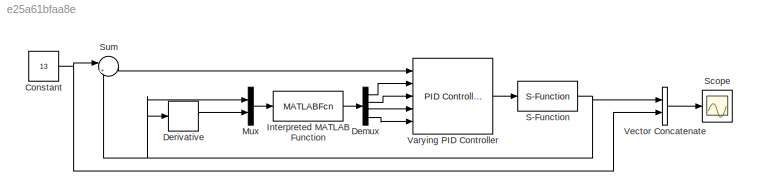
MODEL slx_e25a61bfaa8e
KIND model
CONFIG AbsTol = auto
CONFIG EnableMultiTasking = off
CONFIG FixedStep = auto
CONFIG MaxStep = auto
CONFIG MinStep = auto
CONFIG RelTol = 1e-3
CONFIG SampleTimeConstraint = Unconstrained
CONFIG SolverName = VariableStepAuto
CONFIG StartTime = 0
CONFIG StopTime = 100.0
BLOCK [Constant] Constant
  Value = 13
BLOCK [Demux] Demux
  Ports = [1, 4]
BLOCK [Derivative] Derivative
BLOCK [MATLABFcn] Interpreted MATLAB Function
  MATLABFcn = expert
  OutputDimensions = 4
  Ports = [1, 1]
BLOCK [Mux] Mux
  DisplayOption = bar
  Inputs = 2
  Ports = [2, 1]
BLOCK [S-Function] S-Function
  EnableBusSupport = off
  FunctionName = water_tank
  Ports = [1, 1]
  SFcnIsStateOwnerBlock = off
  SFunctionDeploymentMode = off
BLOCK [Scope] Scope
  Floating = off
  NumInputPorts = 1
  Ports = [1]
  ScopeSpecificationString = Simulink.scopes.TimeScopeBlockCfg('CurrentConfiguration', extmgr.ConfigurationSet(extmgr.Configuration('Core','General UI',true),extmgr.Configuration('Core','Source UI',true),extmgr.Configuration('Sources','WiredSimulink',true),extmgr.Configuration('Visuals','Time Domain',true,'SerializedDisplays',{struct('MinYLimReal','11.69447','MaxYLimReal','13.83169','YLabelReal','','MinYLimMag','11.69447','Ma...<+1419ch>
BLOCK [Sum] Sum
  Inputs = |+-
  Ports = [2, 1]
BLOCK [Reference] Varying PID Controller  REF=slpidlib/PID Controller
  Ports = [5, 1]
  SourceBlock = slpidlib/PID Controller
  SourceProductBaseCode = SL
  SourceType = PID 1dof
BLOCK [Concatenate] Vector Concatenate
  Ports = [2, 1]
NET Constant:1 -> Sum:1, Vector Concatenate:2
LINE Demux:1 -> Varying PID Controller:2
LINE Demux:2 -> Varying PID Controller:3
LINE Demux:3 -> Varying PID Controller:4
LINE Demux:4 -> Varying PID Controller:5
LINE Derivative:1 -> Mux:2
LINE Interpreted MATLAB Function:1 -> Demux:1
LINE Mux:1 -> Interpreted MATLAB Function:1
NET S-Function:1 -> Derivative:1, Mux:1, Sum:2, Vector Concatenate:1
LINE Sum:1 -> Varying PID Controller:1
LINE Varying PID Controller:1 -> S-Function:1
LINE Vector Concatenate:1 -> Scope:1
note: NET lines group one-source signal fan-out (src -> all destinations, sorted); 1:1 wires keep LINE
